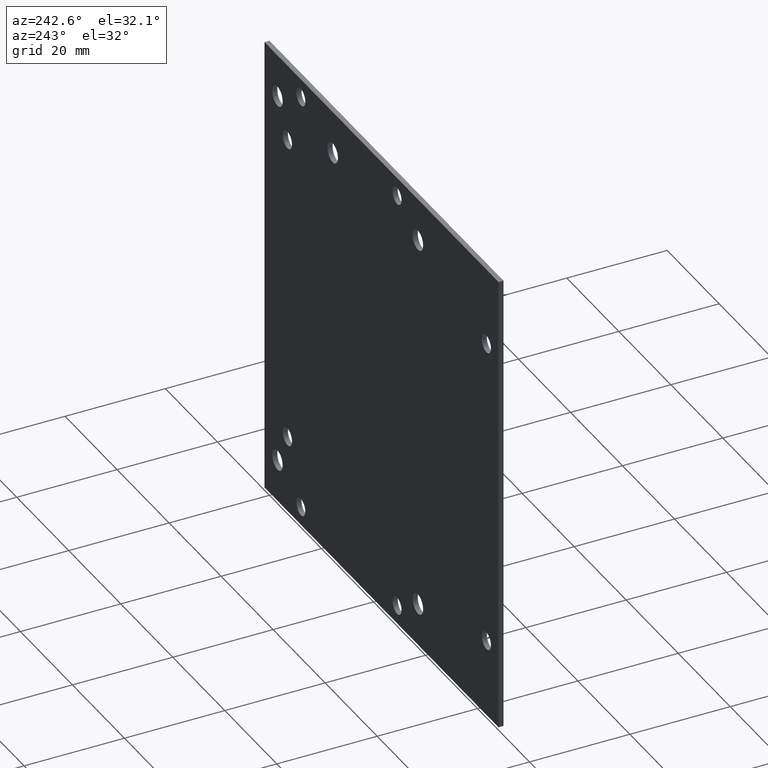
[diagram: clean part render]
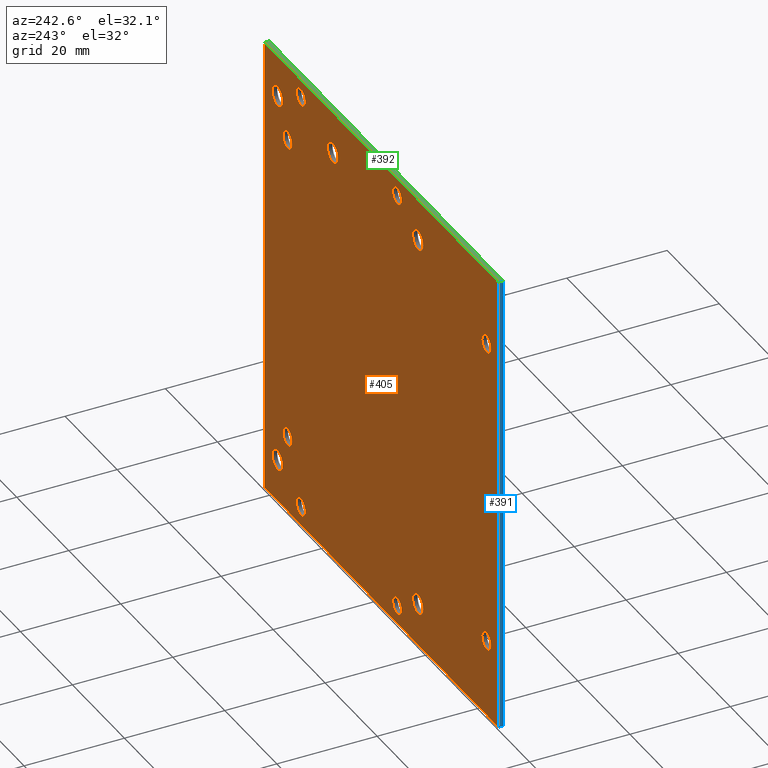
[diagram: same view with three faces highlighted in distinct colors, each labeled with its STEP entity id]
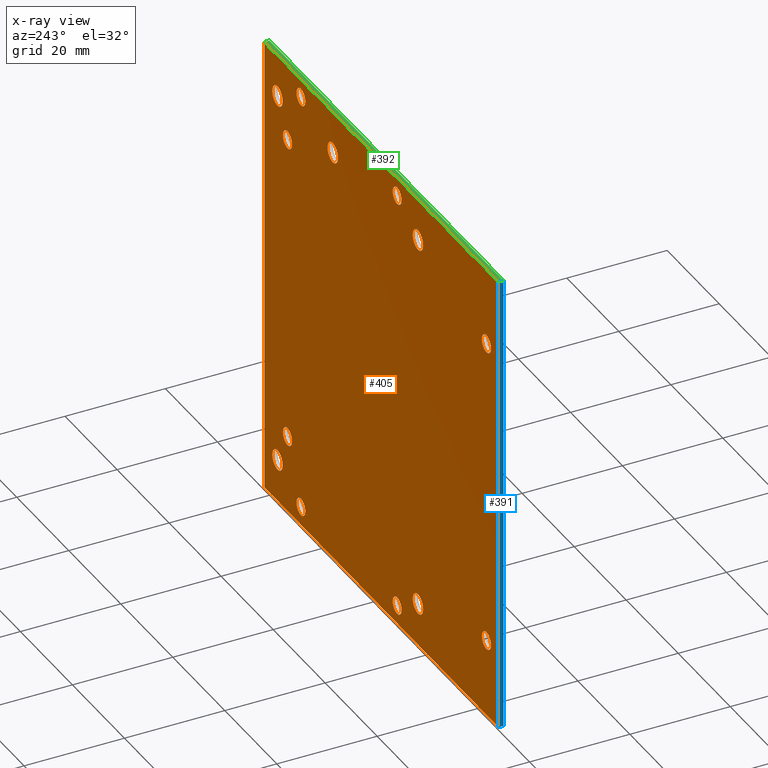
[diagram: x-ray of the same camera — body ghosted, the three highlighted faces saturated]
A machine part, auxiliary view with three faces highlighted in distinct colors.
The next image is the same camera in x-ray (body ghosted, the three faces saturated) — at least one of them is partly hidden behind the body in this view.
Their STEP definitions:

[orange] entity #405 — the highlighted planar face has unit normal (0, 1, 0).
#28=FACE_BOUND('',#98,.T.);
#29=FACE_BOUND('',#99,.T.);
#30=FACE_BOUND('',#100,.T.);
#31=FACE_BOUND('',#101,.T.);
#32=FACE_BOUND('',#102,.T.);
#33=FACE_BOUND('',#103,.T.);
#34=FACE_BOUND('',#104,.T.);
#35=FACE_BOUND('',#105,.T.);
#36=FACE_BOUND('',#106,.T.);
#37=FACE_BOUND('',#107,.T.);
#38=FACE_BOUND('',#108,.T.);
#39=FACE_BOUND('',#109,.T.);
#40=FACE_BOUND('',#110,.T.);
#46=PLANE('',#470);
#65=FACE_OUTER_BOUND('',#97,.T.);
#97=EDGE_LOOP('',(#357,#358,#359,#360));
#98=EDGE_LOOP('',(#361));
#99=EDGE_LOOP('',(#362));
#100=EDGE_LOOP('',(#363));
#101=EDGE_LOOP('',(#364));
#102=EDGE_LOOP('',(#365));
#103=EDGE_LOOP('',(#366));
#104=EDGE_LOOP('',(#367));
#105=EDGE_LOOP('',(#368));
#106=EDGE_LOOP('',(#369));
#107=EDGE_LOOP('',(#370));
#108=EDGE_LOOP('',(#371));
#109=EDGE_LOOP('',(#372));
#110=EDGE_LOOP('',(#373));
#115=LINE('',#616,#140);
#121=LINE('',#627,#146);
#133=LINE('',#688,#158);
#135=LINE('',#691,#160);
#140=VECTOR('',#503,10.);
#146=VECTOR('',#511,10.);
#158=VECTOR('',#581,10.);
#160=VECTOR('',#585,10.);
#161=CIRCLE('',#427,1.7);
#163=CIRCLE('',#430,1.7);
#165=CIRCLE('',#433,1.7);
#167=CIRCLE('',#436,1.7);
#178=CIRCLE('',#451,2.);
#179=CIRCLE('',#453,2.);
#180=CIRCLE('',#455,2.);
#181=CIRCLE('',#457,1.75);
#182=CIRCLE('',#459,1.75);
#183=CIRCLE('',#461,1.75);
#184=CIRCLE('',#463,1.75);
#185=CIRCLE('',#465,2.);
#186=CIRCLE('',#467,2.);
#187=VERTEX_POINT('',#590);
#189=VERTEX_POINT('',#596);
#191=VERTEX_POINT('',#602);
#193=VERTEX_POINT('',#608);
#195=VERTEX_POINT('',#614);
#196=VERTEX_POINT('',#615);
#200=VERTEX_POINT('',#625);
#211=VERTEX_POINT('',#651);
#212=VERTEX_POINT('',#655);
#213=VERTEX_POINT('',#659);
#214=VERTEX_POINT('',#663);
#215=VERTEX_POINT('',#667);
#216=VERTEX_POINT('',#671);
#217=VERTEX_POINT('',#675);
#218=VERTEX_POINT('',#679);
#219=VERTEX_POINT('',#683);
#220=VERTEX_POINT('',#687);
#221=EDGE_CURVE('',#187,#187,#161,.T.);
#224=EDGE_CURVE('',#189,#189,#163,.T.);
#227=EDGE_CURVE('',#191,#191,#165,.T.);
#230=EDGE_CURVE('',#193,#193,#167,.T.);
#233=EDGE_CURVE('',#195,#196,#115,.T.);
#239=EDGE_CURVE('',#196,#200,#121,.T.);
#252=EDGE_CURVE('',#211,#211,#178,.T.);
#254=EDGE_CURVE('',#212,#212,#179,.T.);
#256=EDGE_CURVE('',#213,#213,#180,.T.);
#258=EDGE_CURVE('',#214,#214,#181,.T.);
#260=EDGE_CURVE('',#215,#215,#182,.T.);
#262=EDGE_CURVE('',#216,#216,#183,.T.);
#264=EDGE_CURVE('',#217,#217,#184,.T.);
#266=EDGE_CURVE('',#218,#218,#185,.T.);
#268=EDGE_CURVE('',#219,#219,#186,.T.);
#269=EDGE_CURVE('',#220,#195,#133,.T.);
#271=EDGE_CURVE('',#200,#220,#135,.T.);
#357=ORIENTED_EDGE('',*,*,#233,.T.);
#358=ORIENTED_EDGE('',*,*,#239,.T.);
#359=ORIENTED_EDGE('',*,*,#271,.T.);
#360=ORIENTED_EDGE('',*,*,#269,.T.);
#361=ORIENTED_EDGE('',*,*,#221,.T.);
#362=ORIENTED_EDGE('',*,*,#224,.T.);
#363=ORIENTED_EDGE('',*,*,#227,.T.);
#364=ORIENTED_EDGE('',*,*,#230,.T.);
#365=ORIENTED_EDGE('',*,*,#252,.T.);
#366=ORIENTED_EDGE('',*,*,#254,.T.);
#367=ORIENTED_EDGE('',*,*,#256,.T.);
#368=ORIENTED_EDGE('',*,*,#258,.T.);
#369=ORIENTED_EDGE('',*,*,#260,.T.);
#370=ORIENTED_EDGE('',*,*,#262,.T.);
#371=ORIENTED_EDGE('',*,*,#264,.T.);
#372=ORIENTED_EDGE('',*,*,#266,.T.);
#373=ORIENTED_EDGE('',*,*,#268,.T.);
#405=ADVANCED_FACE('',(#65,#28,#29,#30,#31,#32,#33,#34,#35,#36,#37,#38,
#39,#40),#46,.T.);
#427=AXIS2_PLACEMENT_3D('',#591,#475,#476);
#430=AXIS2_PLACEMENT_3D('',#597,#482,#483);
#433=AXIS2_PLACEMENT_3D('',#603,#489,#490);
#436=AXIS2_PLACEMENT_3D('',#609,#496,#497);
#451=AXIS2_PLACEMENT_3D('',#653,#537,#538);
#453=AXIS2_PLACEMENT_3D('',#657,#542,#543);
#455=AXIS2_PLACEMENT_3D('',#661,#547,#548);
#457=AXIS2_PLACEMENT_3D('',#665,#552,#553);
#459=AXIS2_PLACEMENT_3D('',#669,#557,#558);
#461=AXIS2_PLACEMENT_3D('',#673,#562,#563);
#463=AXIS2_PLACEMENT_3D('',#677,#567,#568);
#465=AXIS2_PLACEMENT_3D('',#681,#572,#573);
#467=AXIS2_PLACEMENT_3D('',#685,#577,#578);
#470=AXIS2_PLACEMENT_3D('',#692,#586,#587);
#475=DIRECTION('center_axis',(0.,-1.,0.));
#476=DIRECTION('ref_axis',(-1.,0.,0.));
#482=DIRECTION('center_axis',(0.,-1.,0.));
#483=DIRECTION('ref_axis',(-1.,0.,0.));
#489=DIRECTION('center_axis',(0.,-1.,0.));
#490=DIRECTION('ref_axis',(-1.,0.,0.));
#496=DIRECTION('center_axis',(0.,-1.,0.));
#497=DIRECTION('ref_axis',(-1.,0.,0.));
#503=DIRECTION('',(0.,0.,1.));
#511=DIRECTION('',(1.,0.,0.));
#537=DIRECTION('center_axis',(0.,-1.,0.));
#538=DIRECTION('ref_axis',(1.,0.,0.));
#542=DIRECTION('center_axis',(0.,-1.,0.));
#543=DIRECTION('ref_axis',(1.,0.,0.));
#547=DIRECTION('center_axis',(0.,-1.,0.));
#548=DIRECTION('ref_axis',(1.,0.,0.));
#552=DIRECTION('center_axis',(0.,-1.,0.));
#553=DIRECTION('ref_axis',(1.,0.,0.));
#557=DIRECTION('center_axis',(0.,-1.,0.));
#558=DIRECTION('ref_axis',(1.,0.,0.));
#562=DIRECTION('center_axis',(0.,-1.,0.));
#563=DIRECTION('ref_axis',(1.,0.,0.));
#567=DIRECTION('center_axis',(0.,-1.,0.));
#568=DIRECTION('ref_axis',(1.,0.,0.));
#572=DIRECTION('center_axis',(0.,-1.,0.));
#573=DIRECTION('ref_axis',(1.,0.,0.));
#577=DIRECTION('center_axis',(0.,-1.,0.));
#578=DIRECTION('ref_axis',(1.,0.,0.));
#581=DIRECTION('',(-1.,0.,-1.77635683940025E-16));
#585=DIRECTION('',(0.,0.,-1.));
#586=DIRECTION('center_axis',(0.,1.,0.));
#587=DIRECTION('ref_axis',(0.,0.,1.));
#590=CARTESIAN_POINT('',(-12.3,1.,0.300000000000011));
#591=CARTESIAN_POINT('Origin',(-14.,1.,0.300000000000011));
#596=CARTESIAN_POINT('',(-12.3,1.,-85.3));
#597=CARTESIAN_POINT('Origin',(-14.,1.,-85.3));
#602=CARTESIAN_POINT('',(-49.3,1.,-85.3));
#603=CARTESIAN_POINT('Origin',(-51.,1.,-85.3));
#608=CARTESIAN_POINT('',(-49.3,1.,0.300000000000047));
#609=CARTESIAN_POINT('Origin',(-51.,1.,0.300000000000047));
#614=CARTESIAN_POINT('',(-90.,1.,-89.));
#615=CARTESIAN_POINT('',(-90.,1.,4.));
#616=CARTESIAN_POINT('',(-90.,1.,-65.75));
#625=CARTESIAN_POINT('',(0.,1.,4.));
#627=CARTESIAN_POINT('',(-100.,1.,4.));
#651=CARTESIAN_POINT('',(-61.,1.,-4.49999999999999));
#653=CARTESIAN_POINT('Origin',(-59.,1.,-4.49999999999999));
#655=CARTESIAN_POINT('',(-61.,1.,-80.5));
#657=CARTESIAN_POINT('Origin',(-59.,1.,-80.5));
#659=CARTESIAN_POINT('',(-28.25,1.,-4.49999999999999));
#661=CARTESIAN_POINT('Origin',(-26.25,1.,-4.49999999999999));
#663=CARTESIAN_POINT('',(-87.0845135949853,1.,-11.5));
#665=CARTESIAN_POINT('Origin',(-85.3345135949853,1.,-11.5));
#667=CARTESIAN_POINT('',(-87.0845135949853,1.,-73.5));
#669=CARTESIAN_POINT('Origin',(-85.3345135949853,1.,-73.5));
#671=CARTESIAN_POINT('',(-10.5845135949853,1.,-11.5));
#673=CARTESIAN_POINT('Origin',(-8.83451359498527,1.,-11.5));
#675=CARTESIAN_POINT('',(-10.5845135949853,1.,-73.5));
#677=CARTESIAN_POINT('Origin',(-8.83451359498527,1.,-73.5));
#679=CARTESIAN_POINT('',(-7.,1.,-4.49999999999999));
#681=CARTESIAN_POINT('Origin',(-5.,1.,-4.49999999999999));
#683=CARTESIAN_POINT('',(-7.,1.,-80.5));
#685=CARTESIAN_POINT('Origin',(-5.,1.,-80.5));
#687=CARTESIAN_POINT('',(7.88860905221012E-30,1.,-89.));
#688=CARTESIAN_POINT('',(7.88860905221012E-30,1.,-89.));
#691=CARTESIAN_POINT('',(0.,1.,4.));
#692=CARTESIAN_POINT('Origin',(-50.,1.,-42.5));

[blue] entity #391 — the highlighted planar face has unit normal (1, 0, 0).
#41=PLANE('',#438);
#51=FACE_OUTER_BOUND('',#70,.T.);
#70=EDGE_LOOP('',(#288,#289,#290,#291));
#115=LINE('',#616,#140);
#116=LINE('',#618,#141);
#117=LINE('',#620,#142);
#118=LINE('',#621,#143);
#140=VECTOR('',#503,10.);
#141=VECTOR('',#504,10.);
#142=VECTOR('',#505,10.);
#143=VECTOR('',#506,10.);
#195=VERTEX_POINT('',#614);
#196=VERTEX_POINT('',#615);
#197=VERTEX_POINT('',#617);
#198=VERTEX_POINT('',#619);
#233=EDGE_CURVE('',#195,#196,#115,.T.);
#234=EDGE_CURVE('',#197,#195,#116,.T.);
#235=EDGE_CURVE('',#198,#197,#117,.T.);
#236=EDGE_CURVE('',#196,#198,#118,.T.);
#288=ORIENTED_EDGE('',*,*,#233,.F.);
#289=ORIENTED_EDGE('',*,*,#234,.F.);
#290=ORIENTED_EDGE('',*,*,#235,.F.);
#291=ORIENTED_EDGE('',*,*,#236,.F.);
#391=ADVANCED_FACE('',(#51),#41,.F.);
#438=AXIS2_PLACEMENT_3D('',#613,#501,#502);
#501=DIRECTION('center_axis',(1.,0.,0.));
#502=DIRECTION('ref_axis',(0.,0.,1.));
#503=DIRECTION('',(0.,0.,1.));
#504=DIRECTION('',(0.,1.,0.));
#505=DIRECTION('',(0.,0.,-1.));
#506=DIRECTION('',(0.,-1.,0.));
#613=CARTESIAN_POINT('Origin',(-90.,1.,-89.));
#614=CARTESIAN_POINT('',(-90.,1.,-89.));
#615=CARTESIAN_POINT('',(-90.,1.,4.));
#616=CARTESIAN_POINT('',(-90.,1.,-65.75));
#617=CARTESIAN_POINT('',(-90.,0.,-89.));
#618=CARTESIAN_POINT('',(-90.,0.5,-89.));
#619=CARTESIAN_POINT('',(-90.,0.,4.));
#620=CARTESIAN_POINT('',(-90.,0.,-65.75));
#621=CARTESIAN_POINT('',(-90.,0.5,4.));

[green] entity #392 — the highlighted planar face has unit normal (0, 0, 1).
#42=PLANE('',#439);
#52=FACE_OUTER_BOUND('',#71,.T.);
#71=EDGE_LOOP('',(#292,#293,#294,#295));
#118=LINE('',#621,#143);
#119=LINE('',#624,#144);
#120=LINE('',#626,#145);
#121=LINE('',#627,#146);
#143=VECTOR('',#506,10.);
#144=VECTOR('',#509,10.);
#145=VECTOR('',#510,10.);
#146=VECTOR('',#511,10.);
#196=VERTEX_POINT('',#615);
#198=VERTEX_POINT('',#619);
#199=VERTEX_POINT('',#623);
#200=VERTEX_POINT('',#625);
#236=EDGE_CURVE('',#196,#198,#118,.T.);
#237=EDGE_CURVE('',#198,#199,#119,.T.);
#238=EDGE_CURVE('',#199,#200,#120,.T.);
#239=EDGE_CURVE('',#196,#200,#121,.T.);
#292=ORIENTED_EDGE('',*,*,#236,.T.);
#293=ORIENTED_EDGE('',*,*,#237,.T.);
#294=ORIENTED_EDGE('',*,*,#238,.T.);
#295=ORIENTED_EDGE('',*,*,#239,.F.);
#392=ADVANCED_FACE('',(#52),#42,.T.);
#439=AXIS2_PLACEMENT_3D('',#622,#507,#508);
#506=DIRECTION('',(0.,-1.,0.));
#507=DIRECTION('center_axis',(0.,0.,1.));
#508=DIRECTION('ref_axis',(1.,0.,0.));
#509=DIRECTION('',(1.,0.,0.));
#510=DIRECTION('',(0.,1.,0.));
#511=DIRECTION('',(1.,0.,0.));
#615=CARTESIAN_POINT('',(-90.,1.,4.));
#619=CARTESIAN_POINT('',(-90.,0.,4.));
#621=CARTESIAN_POINT('',(-90.,0.5,4.));
#622=CARTESIAN_POINT('Origin',(-100.,0.,4.));
#623=CARTESIAN_POINT('',(0.,0.,4.));
#624=CARTESIAN_POINT('',(-100.,0.,4.));
#625=CARTESIAN_POINT('',(0.,1.,4.));
#626=CARTESIAN_POINT('',(0.,0.,4.));
#627=CARTESIAN_POINT('',(-100.,1.,4.));